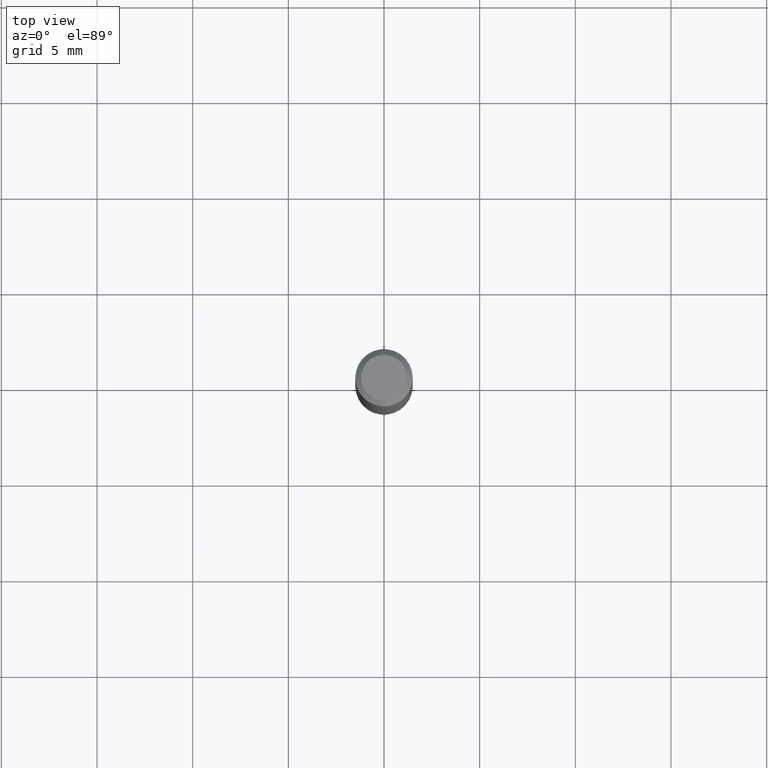
[diagram: clean part render]
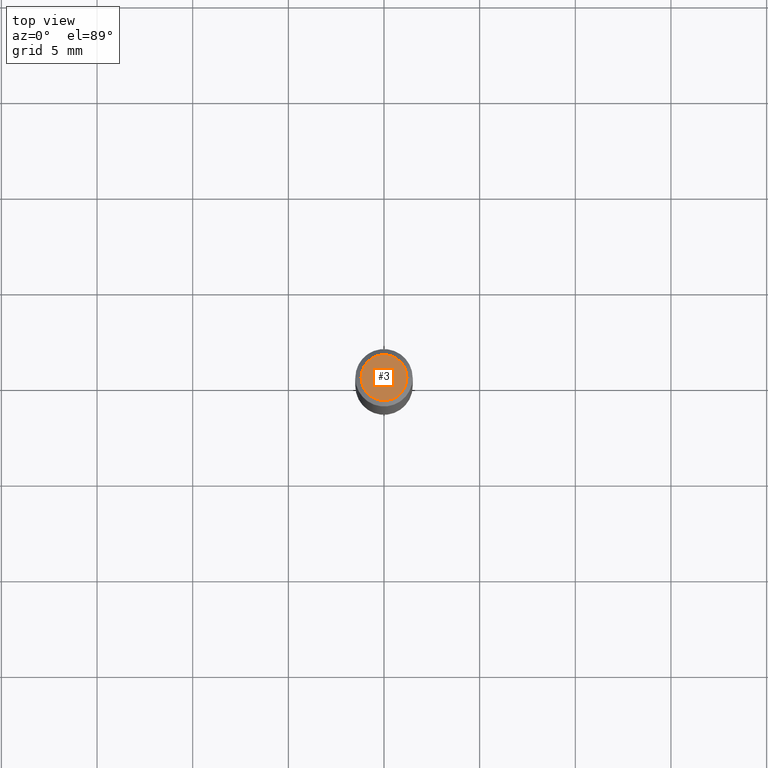
[diagram: same view with one face highlighted and labeled with its STEP entity id]
A machine part, top view. The second image highlights one B-rep face of the part: STEP entity #3.
In plain terms, the highlighted planar face has unit normal (0, -0, -1).
Its self-contained STEP definition (entity closure, byte-faithful):
#3 = ADVANCED_FACE ( 'NONE', ( #307 ), #236, .F. ) ;
#27 = CARTESIAN_POINT ( 'NONE',  ( 8.265746106709734507E-48, -1.180129479067563789E-33, -3.380025165646692144E-19 ) ) ;
#30 = AXIS2_PLACEMENT_3D ( 'NONE', #27, #147, #410 ) ;
#35 = VERTEX_POINT ( 'NONE', #445 ) ;
#46 = DIRECTION ( 'NONE',  ( -2.445468806185136597E-29, 3.491481338843145583E-15, 1.000000000000000000 ) ) ;
#57 = AXIS2_PLACEMENT_3D ( 'NONE', #131, #46, #162 ) ;
#67 = AXIS2_PLACEMENT_3D ( 'NONE', #119, #450, #380 ) ;
#84 = CIRCLE ( 'NONE', #30, 0.04724000000000000421 ) ;
#104 = EDGE_CURVE ( 'NONE', #35, #479, #310, .T. ) ;
#119 = CARTESIAN_POINT ( 'NONE',  ( 4.132873053354867254E-48, -5.900647395337818946E-34, -1.690012582823346072E-19 ) ) ;
#131 = CARTESIAN_POINT ( 'NONE',  ( 8.265746106709734507E-48, -1.180129479067563789E-33, -3.380025165646692144E-19 ) ) ;
#147 = DIRECTION ( 'NONE',  ( -2.445468806185136597E-29, 3.491481338843145583E-15, 1.000000000000000000 ) ) ;
#153 = ORIENTED_EDGE ( 'NONE', *, *, #104, .T. ) ;
#162 = DIRECTION ( 'NONE',  ( 1.000000000000000000, -6.982962677686266711E-15, 4.876185090822587894E-29 ) ) ;
#226 = ORIENTED_EDGE ( 'NONE', *, *, #483, .T. ) ;
#236 = PLANE ( 'NONE',  #67 ) ;
#307 = FACE_OUTER_BOUND ( 'NONE', #447, .T. ) ;
#310 = CIRCLE ( 'NONE', #57, 0.04724000000000000421 ) ;
#380 = DIRECTION ( 'NONE',  ( -1.000000000000000000, 6.982962677686265922E-15, -4.876176775795935793E-29 ) ) ;
#410 = DIRECTION ( 'NONE',  ( 1.000000000000000000, -6.982962677686266711E-15, 4.876185090822587894E-29 ) ) ;
#445 = CARTESIAN_POINT ( 'NONE',  ( -0.04724000000000000421, 3.504923541997677355E-16, -3.380025165670481712E-19 ) ) ;
#447 = EDGE_LOOP ( 'NONE', ( #153, #226 ) ) ;
#450 = DIRECTION ( 'NONE',  ( 2.438088387897960049E-29, -3.491481338843145188E-15, -1.000000000000000000 ) ) ;
#479 = VERTEX_POINT ( 'NONE', #481 ) ;
#481 = CARTESIAN_POINT ( 'NONE',  ( 0.04724000000000000421, -3.852183633974369345E-16, -3.380025165621689721E-19 ) ) ;
#483 = EDGE_CURVE ( 'NONE', #479, #35, #84, .T. ) ;